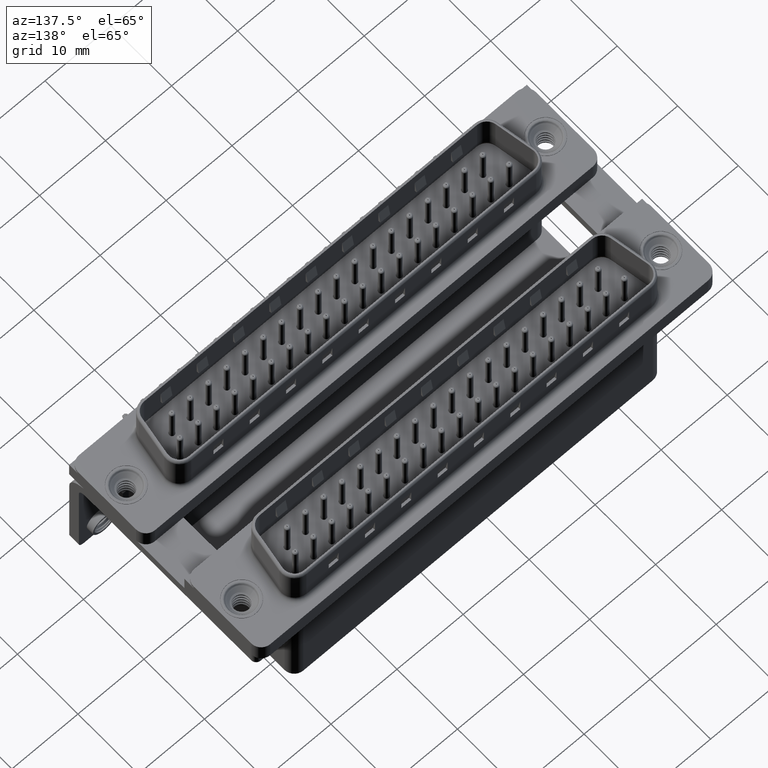
[diagram: clean part render]
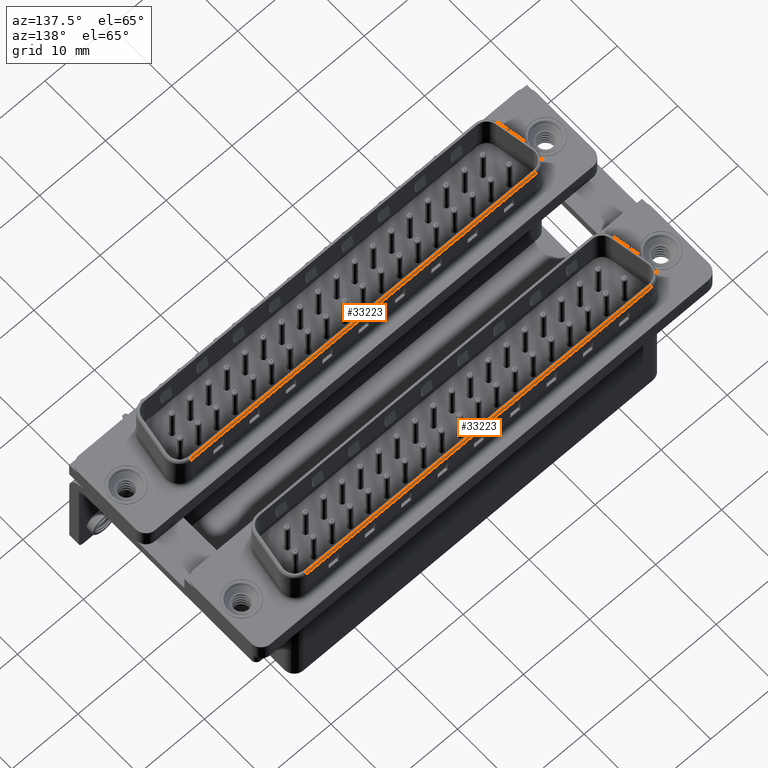
[diagram: same view with one multi-face feature highlighted, each face labeled with its STEP entity id]
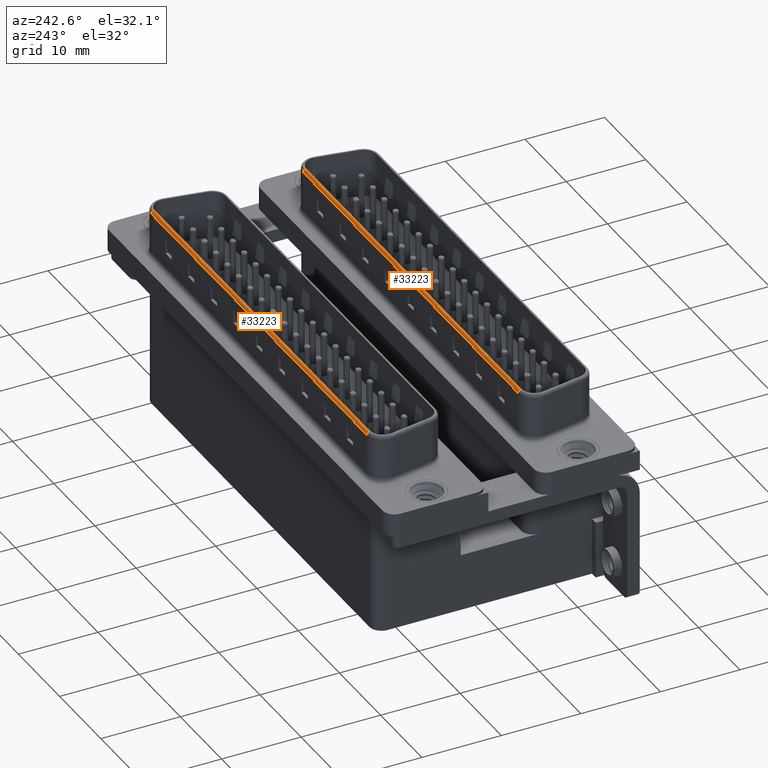
[diagram: same view with one multi-face feature highlighted, each face labeled with its STEP entity id]
A machine part, auxiliary view. The highlighted faces form ONE feature: a constant-radius fillet chain: 2 tangent blend faces with common blend radius 0.5 mm. The faces share edges in the B-rep.
A second angle (auxiliary view) of the same feature is appended — it is thin or edge-on in the first view.
Their STEP definitions:
[1] entity #33223 (Cylinder):
#2645 = VERTEX_POINT ( 'NONE', #12279 ) ;
#3089 = DIRECTION ( 'NONE',  ( -1.000000000000000000, 3.321952271116061705E-17, 0.0000000000000000000 ) ) ;
#4170 = AXIS2_PLACEMENT_3D ( 'NONE', #19044, #51633, #48399 ) ;
#5462 = EDGE_CURVE ( 'NONE', #2645, #33443, #32495, .T. ) ;
#8353 = DIRECTION ( 'NONE',  ( -1.000000000000000000, 0.0000000000000000000, 0.0000000000000000000 ) ) ;
#8625 = CARTESIAN_POINT ( 'NONE',  ( 57.85999999999999943, 4.079999999999992966, 6.000000000000000000 ) ) ;
#10365 = CYLINDRICAL_SURFACE ( 'NONE', #14451, 0.5000000000000000000 ) ;
#12279 = CARTESIAN_POINT ( 'NONE',  ( 57.85999999999999943, 4.379999999999995453, 6.399999999999999467 ) ) ;
#14451 = AXIS2_PLACEMENT_3D ( 'NONE', #26857, #50547, #17866 ) ;
#15838 = VECTOR ( 'NONE', #3089, 1000.000000000000000 ) ;
#17866 = DIRECTION ( 'NONE',  ( 0.0000000000000000000, -1.000000000000000000, 0.0000000000000000000 ) ) ;
#19044 = CARTESIAN_POINT ( 'NONE',  ( 5.640000000000003233, 4.079999999999996518, 6.000000000000000000 ) ) ;
#20083 = CARTESIAN_POINT ( 'NONE',  ( 56.95015277954435362, 4.379999999999995453, 6.400000000000000355 ) ) ;
#21322 = CARTESIAN_POINT ( 'NONE',  ( 57.85999999999999943, 4.579999999999993854, 6.000000000000000000 ) ) ;
#23762 = VERTEX_POINT ( 'NONE', #31894 ) ;
#24014 = CIRCLE ( 'NONE', #4170, 0.5000000000000004441 ) ;
#24839 = DIRECTION ( 'NONE',  ( 0.0000000000000000000, 0.0000000000000000000, 1.000000000000000000 ) ) ;
#26857 = CARTESIAN_POINT ( 'NONE',  ( 56.95015277954435362, 4.079999999999992966, 6.000000000000000000 ) ) ;
#28093 = EDGE_CURVE ( 'NONE', #23762, #33443, #24014, .T. ) ;
#28163 = ORIENTED_EDGE ( 'NONE', *, *, #28093, .T. ) ;
#29660 = CARTESIAN_POINT ( 'NONE',  ( 5.640000000000003233, 4.579999999999997407, 6.000000000000000000 ) ) ;
#30928 = FACE_OUTER_BOUND ( 'NONE', #31780, .T. ) ;
#31780 = EDGE_LOOP ( 'NONE', ( #34094, #52814, #48267, #28163 ) ) ;
#31894 = CARTESIAN_POINT ( 'NONE',  ( 5.640000000000003233, 4.579999999999997407, 6.000000000000000000 ) ) ;
#32495 = LINE ( 'NONE', #20083, #15838 ) ;
#33223 = ADVANCED_FACE ( 'NONE', ( #30928 ), #10365, .T. ) ;
#33443 = VERTEX_POINT ( 'NONE', #52950 ) ;
#34094 = ORIENTED_EDGE ( 'NONE', *, *, #5462, .F. ) ;
#34671 = AXIS2_PLACEMENT_3D ( 'NONE', #8625, #8353, #24839 ) ;
#38357 = EDGE_CURVE ( 'NONE', #2645, #45792, #51858, .T. ) ;
#45413 = VECTOR ( 'NONE', #50347, 1000.000000000000000 ) ;
#45779 = LINE ( 'NONE', #29660, #45413 ) ;
#45792 = VERTEX_POINT ( 'NONE', #21322 ) ;
#47626 = EDGE_CURVE ( 'NONE', #23762, #45792, #45779, .T. ) ;
#48267 = ORIENTED_EDGE ( 'NONE', *, *, #47626, .F. ) ;
#48399 = DIRECTION ( 'NONE',  ( 0.0000000000000000000, 0.0000000000000000000, -1.000000000000000000 ) ) ;
#50347 = DIRECTION ( 'NONE',  ( 1.000000000000000000, -3.321952271116061705E-17, -0.0000000000000000000 ) ) ;
#50547 = DIRECTION ( 'NONE',  ( -1.000000000000000000, 3.321952271116061705E-17, 0.0000000000000000000 ) ) ;
#51633 = DIRECTION ( 'NONE',  ( 1.000000000000000000, 0.0000000000000000000, 0.0000000000000000000 ) ) ;
#51858 = CIRCLE ( 'NONE', #34671, 0.5000000000000004441 ) ;
#52814 = ORIENTED_EDGE ( 'NONE', *, *, #38357, .T. ) ;
#52950 = CARTESIAN_POINT ( 'NONE',  ( 5.640000000000005898, 4.379999999999995453, 6.400000000000000355 ) ) ;
[2] entity #33223 (Cylinder):
#2645 = VERTEX_POINT ( 'NONE', #12279 ) ;
#3089 = DIRECTION ( 'NONE',  ( -1.000000000000000000, 3.321952271116061705E-17, 0.0000000000000000000 ) ) ;
#4170 = AXIS2_PLACEMENT_3D ( 'NONE', #19044, #51633, #48399 ) ;
#5462 = EDGE_CURVE ( 'NONE', #2645, #33443, #32495, .T. ) ;
#8353 = DIRECTION ( 'NONE',  ( -1.000000000000000000, 0.0000000000000000000, 0.0000000000000000000 ) ) ;
#8625 = CARTESIAN_POINT ( 'NONE',  ( 57.85999999999999943, 4.079999999999992966, 6.000000000000000000 ) ) ;
#10365 = CYLINDRICAL_SURFACE ( 'NONE', #14451, 0.5000000000000000000 ) ;
#12279 = CARTESIAN_POINT ( 'NONE',  ( 57.85999999999999943, 4.379999999999995453, 6.399999999999999467 ) ) ;
#14451 = AXIS2_PLACEMENT_3D ( 'NONE', #26857, #50547, #17866 ) ;
#15838 = VECTOR ( 'NONE', #3089, 1000.000000000000000 ) ;
#17866 = DIRECTION ( 'NONE',  ( 0.0000000000000000000, -1.000000000000000000, 0.0000000000000000000 ) ) ;
#19044 = CARTESIAN_POINT ( 'NONE',  ( 5.640000000000003233, 4.079999999999996518, 6.000000000000000000 ) ) ;
#20083 = CARTESIAN_POINT ( 'NONE',  ( 56.95015277954435362, 4.379999999999995453, 6.400000000000000355 ) ) ;
#21322 = CARTESIAN_POINT ( 'NONE',  ( 57.85999999999999943, 4.579999999999993854, 6.000000000000000000 ) ) ;
#23762 = VERTEX_POINT ( 'NONE', #31894 ) ;
#24014 = CIRCLE ( 'NONE', #4170, 0.5000000000000004441 ) ;
#24839 = DIRECTION ( 'NONE',  ( 0.0000000000000000000, 0.0000000000000000000, 1.000000000000000000 ) ) ;
#26857 = CARTESIAN_POINT ( 'NONE',  ( 56.95015277954435362, 4.079999999999992966, 6.000000000000000000 ) ) ;
#28093 = EDGE_CURVE ( 'NONE', #23762, #33443, #24014, .T. ) ;
#28163 = ORIENTED_EDGE ( 'NONE', *, *, #28093, .T. ) ;
#29660 = CARTESIAN_POINT ( 'NONE',  ( 5.640000000000003233, 4.579999999999997407, 6.000000000000000000 ) ) ;
#30928 = FACE_OUTER_BOUND ( 'NONE', #31780, .T. ) ;
#31780 = EDGE_LOOP ( 'NONE', ( #34094, #52814, #48267, #28163 ) ) ;
#31894 = CARTESIAN_POINT ( 'NONE',  ( 5.640000000000003233, 4.579999999999997407, 6.000000000000000000 ) ) ;
#32495 = LINE ( 'NONE', #20083, #15838 ) ;
#33223 = ADVANCED_FACE ( 'NONE', ( #30928 ), #10365, .T. ) ;
#33443 = VERTEX_POINT ( 'NONE', #52950 ) ;
#34094 = ORIENTED_EDGE ( 'NONE', *, *, #5462, .F. ) ;
#34671 = AXIS2_PLACEMENT_3D ( 'NONE', #8625, #8353, #24839 ) ;
#38357 = EDGE_CURVE ( 'NONE', #2645, #45792, #51858, .T. ) ;
#45413 = VECTOR ( 'NONE', #50347, 1000.000000000000000 ) ;
#45779 = LINE ( 'NONE', #29660, #45413 ) ;
#45792 = VERTEX_POINT ( 'NONE', #21322 ) ;
#47626 = EDGE_CURVE ( 'NONE', #23762, #45792, #45779, .T. ) ;
#48267 = ORIENTED_EDGE ( 'NONE', *, *, #47626, .F. ) ;
#48399 = DIRECTION ( 'NONE',  ( 0.0000000000000000000, 0.0000000000000000000, -1.000000000000000000 ) ) ;
#50347 = DIRECTION ( 'NONE',  ( 1.000000000000000000, -3.321952271116061705E-17, -0.0000000000000000000 ) ) ;
#50547 = DIRECTION ( 'NONE',  ( -1.000000000000000000, 3.321952271116061705E-17, 0.0000000000000000000 ) ) ;
#51633 = DIRECTION ( 'NONE',  ( 1.000000000000000000, 0.0000000000000000000, 0.0000000000000000000 ) ) ;
#51858 = CIRCLE ( 'NONE', #34671, 0.5000000000000004441 ) ;
#52814 = ORIENTED_EDGE ( 'NONE', *, *, #38357, .T. ) ;
#52950 = CARTESIAN_POINT ( 'NONE',  ( 5.640000000000005898, 4.379999999999995453, 6.400000000000000355 ) ) ;